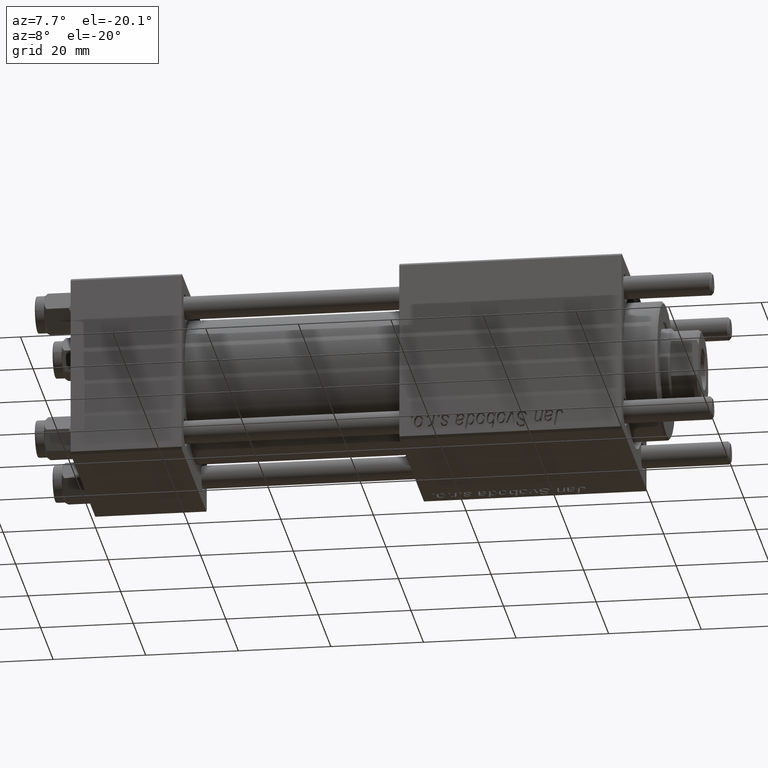
[diagram: clean part render]
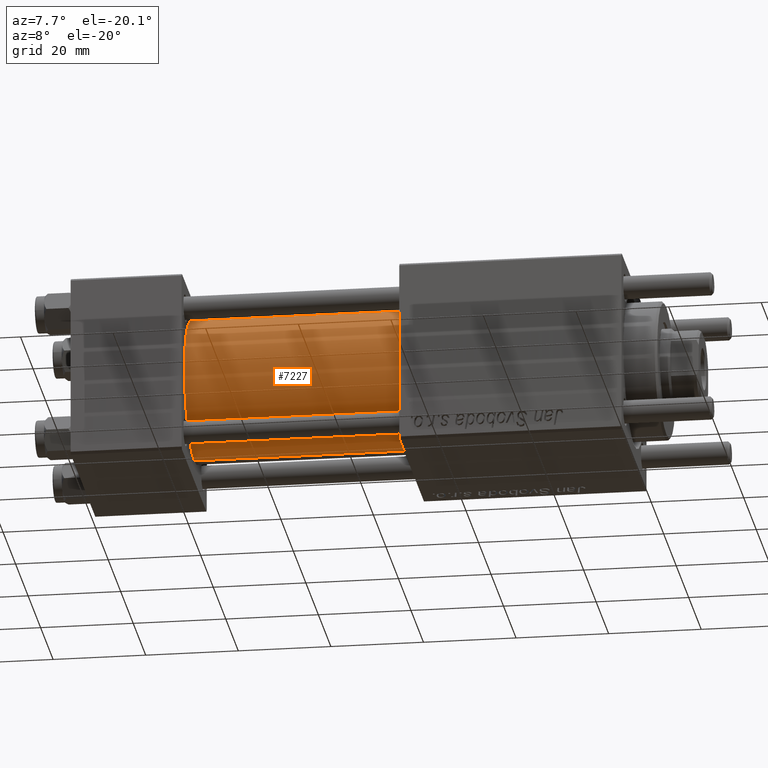
[diagram: same view with one face highlighted and labeled with its STEP entity id]
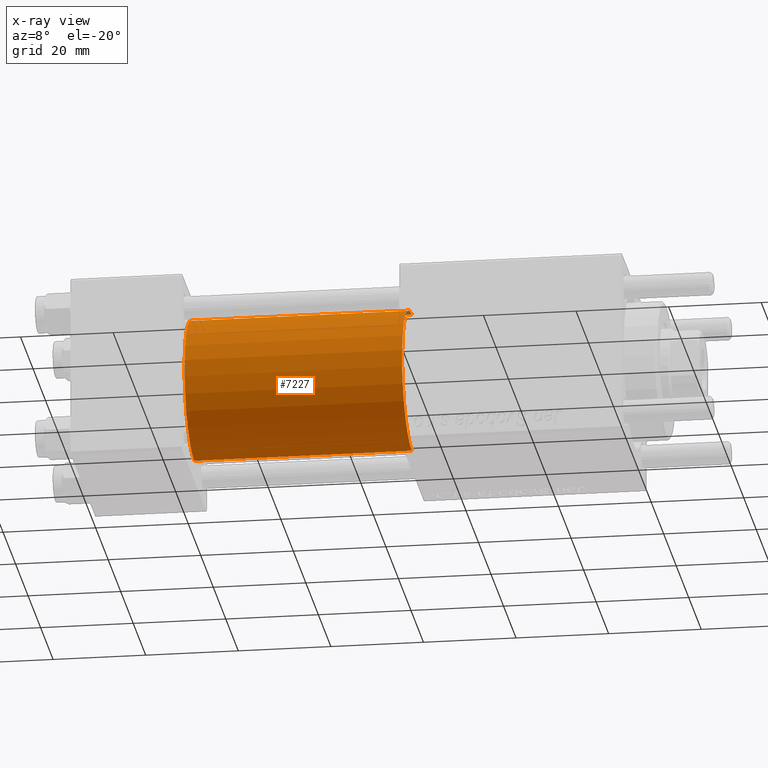
[diagram: x-ray of the same camera — body ghosted, the highlighted face saturated]
A machine part, auxiliary view. The second image highlights one B-rep face of the part: STEP entity #7227.
The next image is the same camera in x-ray: the body ghosted, the highlighted face saturated — about 0% of this face is hidden behind the body in this view.
In plain terms, the highlighted cylindrical surface (partial cylindrical patch) has radius 15.5 mm, axis along (-1, -0, -0).
Its self-contained STEP definition (entity closure, byte-faithful):
#950 = DIRECTION ( 'NONE',  ( 0.000000000000000000, 0.000000000000000000, 1.000000000000000000 ) ) ;
#1793 = CARTESIAN_POINT ( 'NONE',  ( 24.00000000000000000, -2.602085213965210642E-15, 0.000000000000000000 ) ) ;
#3184 = CYLINDRICAL_SURFACE ( 'NONE', #23765, 15.50000000000000000 ) ;
#6077 = DIRECTION ( 'NONE',  ( -1.000000000000000000, -0.000000000000000000, -0.000000000000000000 ) ) ;
#6537 = CIRCLE ( 'NONE', #24816, 15.50000000000000000 ) ;
#7227 = ADVANCED_FACE ( 'NONE', ( #37873 ), #3184, .T. ) ;
#7426 = ORIENTED_EDGE ( 'NONE', *, *, #34515, .T. ) ;
#8788 = DIRECTION ( 'NONE',  ( 1.000000000000000000, 0.000000000000000000, 0.000000000000000000 ) ) ;
#9505 = EDGE_CURVE ( 'NONE', #38561, #10803, #54040, .T. ) ;
#9551 = DIRECTION ( 'NONE',  ( 1.000000000000000000, 0.000000000000000000, 0.000000000000000000 ) ) ;
#10803 = VERTEX_POINT ( 'NONE', #23127 ) ;
#12168 = EDGE_CURVE ( 'NONE', #45989, #13636, #6537, .T. ) ;
#13636 = VERTEX_POINT ( 'NONE', #34349 ) ;
#13745 = AXIS2_PLACEMENT_3D ( 'NONE', #48048, #8788, #26270 ) ;
#19888 = DIRECTION ( 'NONE',  ( -1.000000000000000000, -0.000000000000000000, -0.000000000000000000 ) ) ;
#20591 = ORIENTED_EDGE ( 'NONE', *, *, #42835, .F. ) ;
#20659 = CARTESIAN_POINT ( 'NONE',  ( 71.00000000000001421, -2.602085213965210642E-15, 0.000000000000000000 ) ) ;
#20950 = DIRECTION ( 'NONE',  ( -1.000000000000000000, -0.000000000000000000, -0.000000000000000000 ) ) ;
#21498 = CARTESIAN_POINT ( 'NONE',  ( 71.00000000000001421, -2.602085213965210642E-15, 15.50000000000000000 ) ) ;
#22219 = EDGE_LOOP ( 'NONE', ( #20591, #34844, #7426, #46891 ) ) ;
#23127 = CARTESIAN_POINT ( 'NONE',  ( 71.00000000000001421, -7.038826752868131828E-16, -15.50000000000000000 ) ) ;
#23765 = AXIS2_PLACEMENT_3D ( 'NONE', #20659, #20950, #43021 ) ;
#23845 = LINE ( 'NONE', #28142, #55544 ) ;
#24816 = AXIS2_PLACEMENT_3D ( 'NONE', #1793, #9551, #950 ) ;
#26270 = DIRECTION ( 'NONE',  ( 0.000000000000000000, 0.000000000000000000, -1.000000000000000000 ) ) ;
#27001 = VECTOR ( 'NONE', #19888, 1000.000000000000000 ) ;
#27349 = LINE ( 'NONE', #45694, #27001 ) ;
#28142 = CARTESIAN_POINT ( 'NONE',  ( 71.00000000000001421, -2.602085213965210642E-15, 15.50000000000000000 ) ) ;
#34349 = CARTESIAN_POINT ( 'NONE',  ( 24.00000000000000000, -7.038826752868131828E-16, -15.50000000000000000 ) ) ;
#34515 = EDGE_CURVE ( 'NONE', #38561, #45989, #23845, .T. ) ;
#34844 = ORIENTED_EDGE ( 'NONE', *, *, #9505, .F. ) ;
#37873 = FACE_OUTER_BOUND ( 'NONE', #22219, .T. ) ;
#38561 = VERTEX_POINT ( 'NONE', #21498 ) ;
#42835 = EDGE_CURVE ( 'NONE', #10803, #13636, #27349, .T. ) ;
#43021 = DIRECTION ( 'NONE',  ( 0.000000000000000000, 0.000000000000000000, 1.000000000000000000 ) ) ;
#45694 = CARTESIAN_POINT ( 'NONE',  ( 71.00000000000001421, -7.038826752868131828E-16, -15.50000000000000000 ) ) ;
#45989 = VERTEX_POINT ( 'NONE', #52002 ) ;
#46891 = ORIENTED_EDGE ( 'NONE', *, *, #12168, .T. ) ;
#48048 = CARTESIAN_POINT ( 'NONE',  ( 71.00000000000001421, -2.602085213965210642E-15, 0.000000000000000000 ) ) ;
#52002 = CARTESIAN_POINT ( 'NONE',  ( 24.00000000000000000, -2.602085213965210642E-15, 15.50000000000000000 ) ) ;
#54040 = CIRCLE ( 'NONE', #13745, 15.50000000000000000 ) ;
#55544 = VECTOR ( 'NONE', #6077, 1000.000000000000000 ) ;